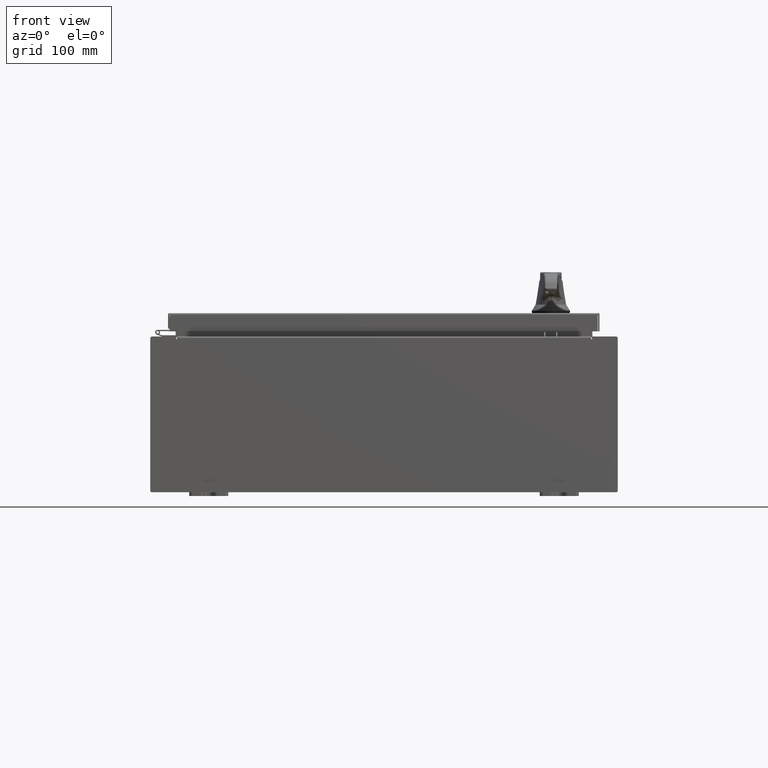
[diagram: clean part render]
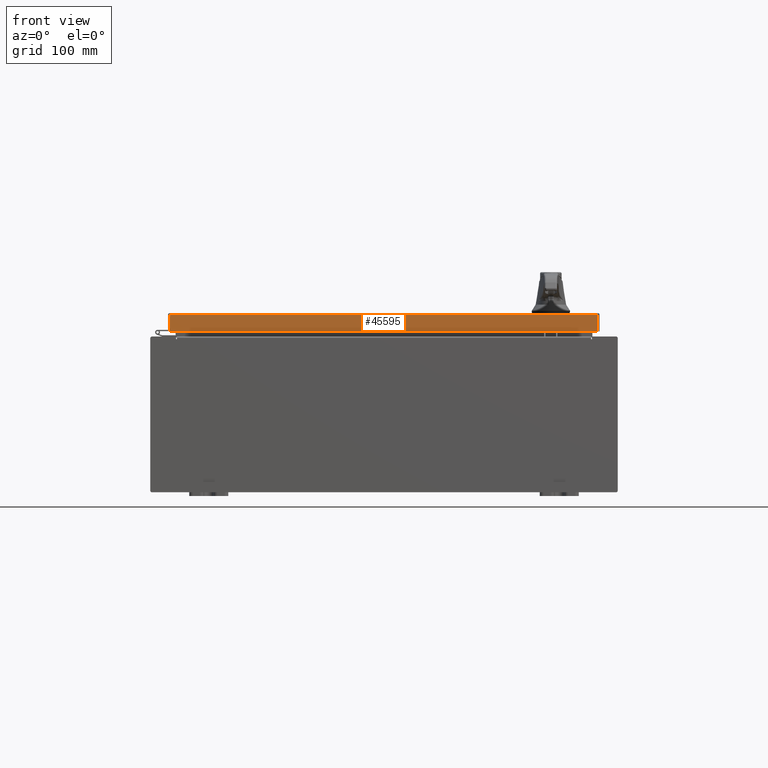
[diagram: same view with one face highlighted and labeled with its STEP entity id]
A machine part, front view. The second image highlights one B-rep face of the part: STEP entity #45595.
In plain terms, the highlighted planar face has unit normal (-0, 1, -0).
Its self-contained STEP definition (entity closure, byte-faithful):
#7891 = EDGE_LOOP ( 'NONE', ( #46782, #78974, #29542, #110050 ) ) ;
#9120 = CARTESIAN_POINT ( 'NONE',  ( -10.98915786437626900, -11.09400000000000100, 2.835548029954469000E-014 ) ) ;
#10258 = LINE ( 'NONE', #76158, #73901 ) ;
#13495 = CARTESIAN_POINT ( 'NONE',  ( 10.98915786437626400, -11.09400000000000100, -0.08770000000000008300 ) ) ;
#15556 = DIRECTION ( 'NONE',  ( -1.000000000000000000, -0.0000000000000000000, 1.233005954894504400E-016 ) ) ;
#18707 = EDGE_CURVE ( 'NONE', #51724, #92565, #10258, .T. ) ;
#27570 = EDGE_CURVE ( 'NONE', #51724, #45696, #77094, .T. ) ;
#29504 = DIRECTION ( 'NONE',  ( -3.122488847327593000E-031, 1.000000000000000000, -2.532419924601866100E-015 ) ) ;
#29542 = ORIENTED_EDGE ( 'NONE', *, *, #30034, .F. ) ;
#30034 = EDGE_CURVE ( 'NONE', #87507, #45696, #102538, .T. ) ;
#30981 = VECTOR ( 'NONE', #104509, 39.37007874015748100 ) ;
#35151 = EDGE_CURVE ( 'NONE', #92565, #87507, #55576, .T. ) ;
#39081 = FACE_OUTER_BOUND ( 'NONE', #7891, .T. ) ;
#43163 = AXIS2_PLACEMENT_3D ( 'NONE', #107161, #29504, #90111 ) ;
#45143 = CARTESIAN_POINT ( 'NONE',  ( 10.98915786437626400, -11.09400000000000300, -0.9376999999999997600 ) ) ;
#45595 = ADVANCED_FACE ( 'NONE', ( #39081 ), #63987, .F. ) ;
#45696 = VERTEX_POINT ( 'NONE', #91263 ) ;
#46782 = ORIENTED_EDGE ( 'NONE', *, *, #18707, .F. ) ;
#48010 = DIRECTION ( 'NONE',  ( -0.0000000000000000000, -2.532419924601866100E-015, -1.000000000000000000 ) ) ;
#49991 = DIRECTION ( 'NONE',  ( 1.000000000000000000, 3.122488847327593500E-031, -7.817847125977043000E-046 ) ) ;
#51724 = VERTEX_POINT ( 'NONE', #54435 ) ;
#54435 = CARTESIAN_POINT ( 'NONE',  ( -10.98915786437627200, -11.09400000000000100, -0.08770000000000008300 ) ) ;
#55576 = LINE ( 'NONE', #99937, #78647 ) ;
#63987 = PLANE ( 'NONE',  #43163 ) ;
#73901 = VECTOR ( 'NONE', #49991, 39.37007874015748100 ) ;
#76158 = CARTESIAN_POINT ( 'NONE',  ( 11.07799999999999600, -11.09400000000000100, -0.08770000000000008300 ) ) ;
#77094 = LINE ( 'NONE', #9120, #30981 ) ;
#78647 = VECTOR ( 'NONE', #48010, 39.37007874015748100 ) ;
#78974 = ORIENTED_EDGE ( 'NONE', *, *, #27570, .T. ) ;
#87507 = VERTEX_POINT ( 'NONE', #45143 ) ;
#90111 = DIRECTION ( 'NONE',  ( 0.0000000000000000000, 2.532419924601866100E-015, 1.000000000000000000 ) ) ;
#91263 = CARTESIAN_POINT ( 'NONE',  ( -10.98915786437627200, -11.09400000000000300, -0.9376999999999970900 ) ) ;
#92565 = VERTEX_POINT ( 'NONE', #13495 ) ;
#94681 = CARTESIAN_POINT ( 'NONE',  ( 11.07799999999999600, -11.09400000000000300, -0.9376999999999997600 ) ) ;
#99937 = CARTESIAN_POINT ( 'NONE',  ( 10.98915786437626400, -11.09400000000000100, -0.07469999999999980800 ) ) ;
#102538 = LINE ( 'NONE', #94681, #105262 ) ;
#104509 = DIRECTION ( 'NONE',  ( 0.0000000000000000000, -2.532419924601866100E-015, -1.000000000000000000 ) ) ;
#105262 = VECTOR ( 'NONE', #15556, 39.37007874015748100 ) ;
#107161 = CARTESIAN_POINT ( 'NONE',  ( 3.464089127225232200E-030, -11.09400000000000100, 2.835548029954469000E-014 ) ) ;
#110050 = ORIENTED_EDGE ( 'NONE', *, *, #35151, .F. ) ;